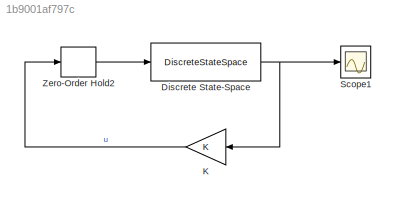
MODEL slx_1b9001af797c
KIND model
CONFIG AbsTol = auto
CONFIG EnableMultiTasking = off
CONFIG FixedStep = auto
CONFIG MaxStep = auto
CONFIG MinStep = auto
CONFIG RelTol = 1e-3
CONFIG SampleTimeConstraint = Unconstrained
CONFIG SolverName = VariableStepAuto
CONFIG StartTime = 0.0
CONFIG StopTime = Tmdl
BLOCK [DiscreteStateSpace] Discrete State-Space
  A = Ad
  B = Bd
  C = eye(2)
  D = [0;0]
  InitialCondition = x_initial
  SampleTime = -1
BLOCK [Gain] K
  Gain = K
  Multiplication = Matrix(K*u) (u vector)
  NameLocation = top
BLOCK [Scope] Scope1
  Floating = off
  NumInputPorts = 1
  ScopeSpecificationString = Simulink.scopes.TimeScopeBlockCfg('CurrentConfiguration', extmgr.ConfigurationSet(extmgr.Configuration('Core','General UI',true),extmgr.Configuration('Core','Source UI',true),extmgr.Configuration('Sources','WiredSimulink',true),extmgr.Configuration('Visuals','Time Domain',true,'SerializedDisplays',{struct('MinYLimReal','-2.88825','MaxYLimReal','1.43203','YLabelReal','','MinYLimMag','0.00000','MaxY...<+1398ch>
BLOCK [ZeroOrderHold] Zero-Order Hold2
  SampleTime = T
NET Discrete State-Space:1 -> K:1, Scope1:1
LINE K:1 -> Zero-Order Hold2:1
LINE Zero-Order Hold2:1 -> Discrete State-Space:1
note: NET lines group one-source signal fan-out (src -> all destinations, sorted); 1:1 wires keep LINE
